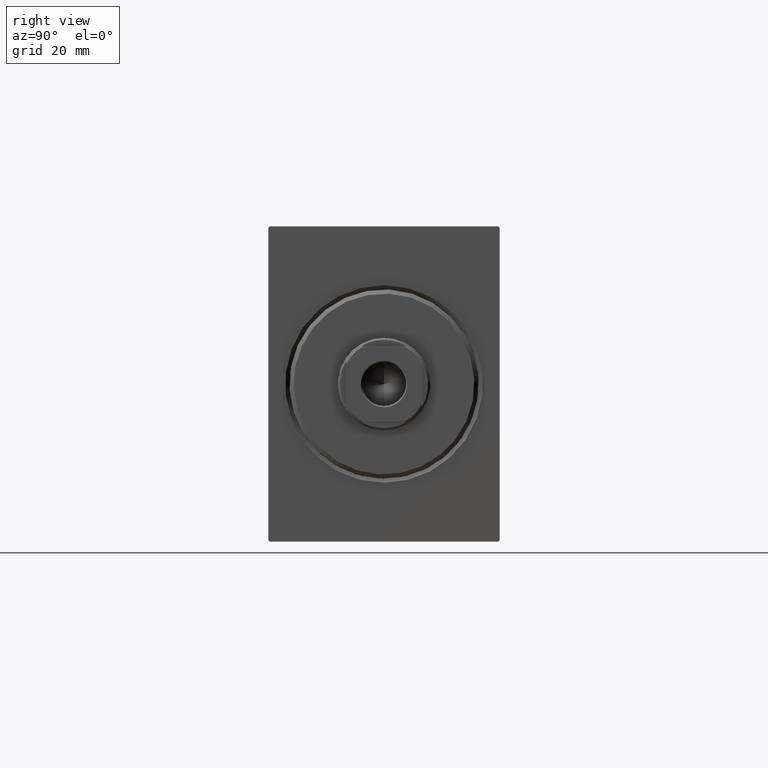
[diagram: clean part render]
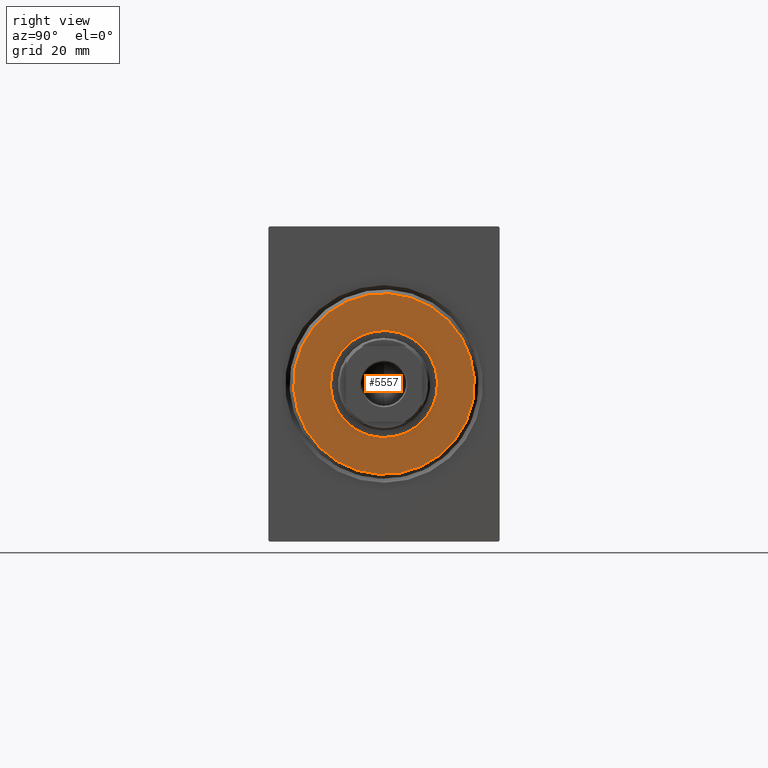
[diagram: same view with one face highlighted and labeled with its STEP entity id]
A machine part, right view. The second image highlights one B-rep face of the part: STEP entity #5557.
In plain terms, the highlighted planar face has unit normal (1, -0, -0).
Its self-contained STEP definition (entity closure, byte-faithful):
#832 = CIRCLE ( 'NONE', #7907, 21.50000000000000355 ) ;
#1034 = CARTESIAN_POINT ( 'NONE',  ( 3.000000000000000000, 0.000000000000000000, -12.75000000000000000 ) ) ;
#1085 = DIRECTION ( 'NONE',  ( 0.000000000000000000, 0.000000000000000000, -1.000000000000000000 ) ) ;
#1730 = ORIENTED_EDGE ( 'NONE', *, *, #17102, .T. ) ;
#3735 = EDGE_LOOP ( 'NONE', ( #29732, #38643 ) ) ;
#4316 = VERTEX_POINT ( 'NONE', #6780 ) ;
#4768 = DIRECTION ( 'NONE',  ( 0.000000000000000000, 0.000000000000000000, -1.000000000000000000 ) ) ;
#5557 = ADVANCED_FACE ( 'NONE', ( #19524, #26593 ), #9997, .T. ) ;
#5725 = AXIS2_PLACEMENT_3D ( 'NONE', #20652, #27521, #34160 ) ;
#6248 = DIRECTION ( 'NONE',  ( 1.000000000000000000, -0.000000000000000000, 0.000000000000000000 ) ) ;
#6780 = CARTESIAN_POINT ( 'NONE',  ( 3.000000000000000000, 1.561424668912875111E-15, 12.75000000000000000 ) ) ;
#7907 = AXIS2_PLACEMENT_3D ( 'NONE', #30968, #17470, #1085 ) ;
#8230 = VERTEX_POINT ( 'NONE', #29975 ) ;
#9997 = PLANE ( 'NONE',  #31652 ) ;
#10646 = CIRCLE ( 'NONE', #5725, 21.50000000000000355 ) ;
#11189 = DIRECTION ( 'NONE',  ( 1.000000000000000000, 0.000000000000000000, 0.000000000000000000 ) ) ;
#13068 = CIRCLE ( 'NONE', #18720, 12.75000000000000000 ) ;
#15337 = AXIS2_PLACEMENT_3D ( 'NONE', #35721, #28436, #32195 ) ;
#17102 = EDGE_CURVE ( 'NONE', #37019, #8230, #10646, .T. ) ;
#17470 = DIRECTION ( 'NONE',  ( 1.000000000000000000, -0.000000000000000000, 0.000000000000000000 ) ) ;
#18720 = AXIS2_PLACEMENT_3D ( 'NONE', #28004, #11189, #4768 ) ;
#19524 = FACE_OUTER_BOUND ( 'NONE', #30872, .T. ) ;
#20405 = EDGE_CURVE ( 'NONE', #8230, #37019, #832, .T. ) ;
#20652 = CARTESIAN_POINT ( 'NONE',  ( 3.000000000000000000, 0.000000000000000000, 0.000000000000000000 ) ) ;
#26383 = DIRECTION ( 'NONE',  ( 0.000000000000000000, 0.000000000000000000, -1.000000000000000000 ) ) ;
#26593 = FACE_BOUND ( 'NONE', #3735, .T. ) ;
#27521 = DIRECTION ( 'NONE',  ( 1.000000000000000000, -0.000000000000000000, 0.000000000000000000 ) ) ;
#28004 = CARTESIAN_POINT ( 'NONE',  ( 3.000000000000000000, 0.000000000000000000, 0.000000000000000000 ) ) ;
#28436 = DIRECTION ( 'NONE',  ( 1.000000000000000000, 0.000000000000000000, 0.000000000000000000 ) ) ;
#29732 = ORIENTED_EDGE ( 'NONE', *, *, #41551, .F. ) ;
#29918 = CARTESIAN_POINT ( 'NONE',  ( 3.000000000000000000, 0.000000000000000000, 0.000000000000000000 ) ) ;
#29975 = CARTESIAN_POINT ( 'NONE',  ( 3.000000000000000000, 2.694222958124177598E-15, -21.50000000000000355 ) ) ;
#30872 = EDGE_LOOP ( 'NONE', ( #1730, #40609 ) ) ;
#30968 = CARTESIAN_POINT ( 'NONE',  ( 3.000000000000000000, 0.000000000000000000, 0.000000000000000000 ) ) ;
#31652 = AXIS2_PLACEMENT_3D ( 'NONE', #29918, #6248, #26383 ) ;
#32026 = EDGE_CURVE ( 'NONE', #4316, #36852, #13068, .T. ) ;
#32195 = DIRECTION ( 'NONE',  ( 0.000000000000000000, 0.000000000000000000, -1.000000000000000000 ) ) ;
#34160 = DIRECTION ( 'NONE',  ( 0.000000000000000000, 0.000000000000000000, -1.000000000000000000 ) ) ;
#35721 = CARTESIAN_POINT ( 'NONE',  ( 3.000000000000000000, 0.000000000000000000, 0.000000000000000000 ) ) ;
#36852 = VERTEX_POINT ( 'NONE', #1034 ) ;
#37019 = VERTEX_POINT ( 'NONE', #41308 ) ;
#38643 = ORIENTED_EDGE ( 'NONE', *, *, #32026, .F. ) ;
#39333 = CIRCLE ( 'NONE', #15337, 12.75000000000000000 ) ;
#40609 = ORIENTED_EDGE ( 'NONE', *, *, #20405, .T. ) ;
#41308 = CARTESIAN_POINT ( 'NONE',  ( 3.000000000000000000, 0.000000000000000000, 21.50000000000000355 ) ) ;
#41551 = EDGE_CURVE ( 'NONE', #36852, #4316, #39333, .T. ) ;